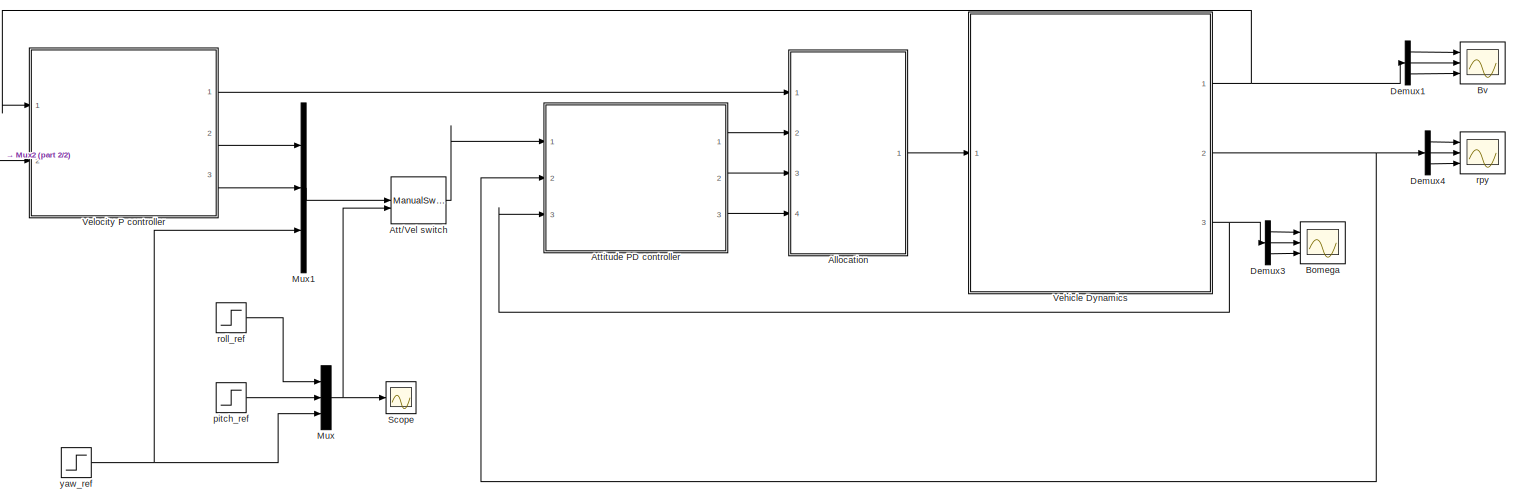
[diagram: root canvas - part 1/2, most of the canvas]
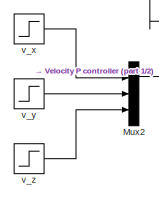
[diagram: root canvas - part 2/2, middle left region]
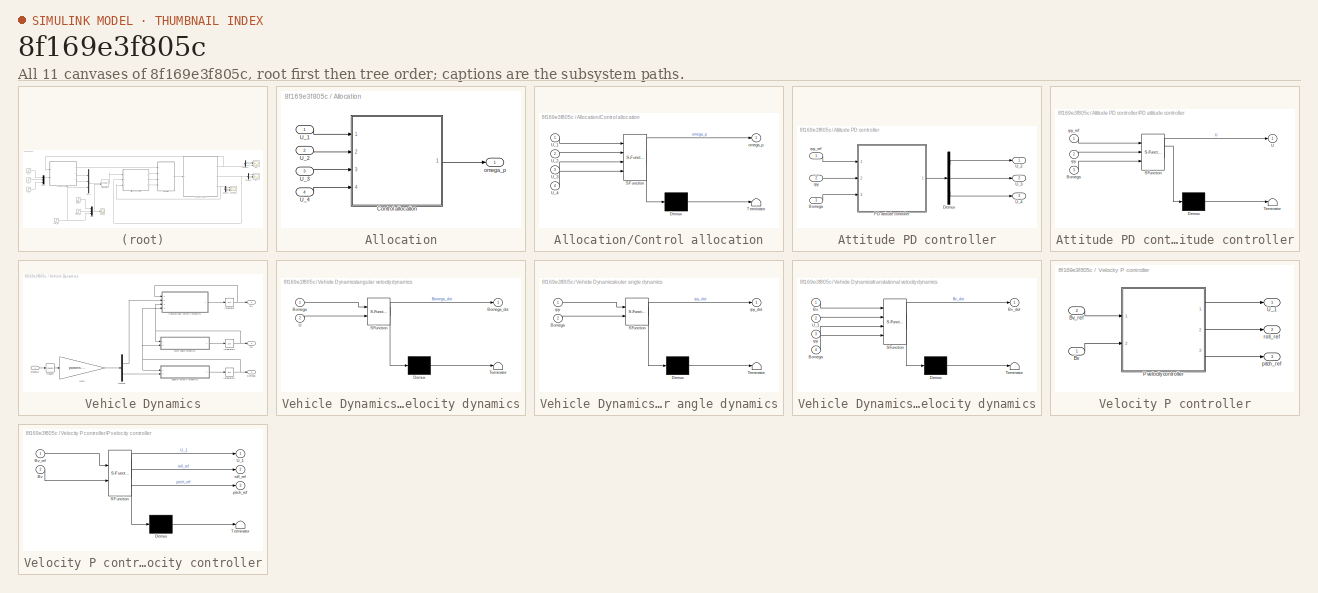
[diagram: thumbnail index - all 11 canvases of the model, root first then tree order]
MODEL slx_8f169e3f805c
KIND model
CONFIG AbsTol = auto
CONFIG EnableMultiTasking = on
CONFIG FixedStep = 0.01
CONFIG InitFcn = params = parameters();
CONFIG MaxStep = auto
CONFIG MinStep = auto
CONFIG RelTol = 1e-3
CONFIG SampleTimeConstraint = Unconstrained
CONFIG SolverName = VariableStepAuto
CONFIG StartTime = 0.0
CONFIG StopTime = 10.0
BLOCK [SubSystem] Allocation
  Ports = [4, 1]
  RequestExecContextInheritance = off
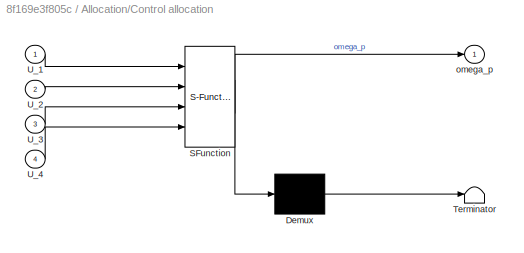
BLOCK [SubSystem] Allocation/Control allocation
  ErrorFcn = Stateflow.Translate.translate
  PermitHierarchicalResolution = ExplicitOnly
  Ports = [4, 1]
  RequestExecContextInheritance = off
  SFBlockType = MATLAB Function
  TreatAsAtomicUnit = on
BLOCK [Demux] Allocation/Control allocation/ Demux 
  Outputs = 1
  Ports = [1, 1]
BLOCK [S-Function] Allocation/Control allocation/ SFunction 
  EnableBusSupport = on
  FunctionName = sf_sfun
  PortCounts = [4 2]
  Ports = [4, 2]
  SFcnIsStateOwnerBlock = off
  SFunctionDeploymentMode = off
  Tag = Stateflow S-Function 7
BLOCK [Terminator] Allocation/Control allocation/ Terminator 
BLOCK [Inport] Allocation/Control allocation/U_1
BLOCK [Inport] Allocation/Control allocation/U_2
  Port = 2
BLOCK [Inport] Allocation/Control allocation/U_3
  Port = 3
BLOCK [Inport] Allocation/Control allocation/U_4
  Port = 4
BLOCK [Outport] Allocation/Control allocation/omega_p
BLOCK [Inport] Allocation/U_1
BLOCK [Inport] Allocation/U_2
  Port = 2
BLOCK [Inport] Allocation/U_3
  Port = 3
BLOCK [Inport] Allocation/U_4
  Port = 4
BLOCK [Outport] Allocation/omega_p
  PortDimensions = [6,1]
  VarSizeSig = No
BLOCK [ManualSwitch] Att//Vel switch
BLOCK [SubSystem] Attitude PD controller
  Ports = [3, 3]
  RequestExecContextInheritance = off
BLOCK [Inport] Attitude PD controller/Bomega 
  Port = 3
BLOCK [Demux] Attitude PD controller/Demux
  Outputs = 3
  Ports = [1, 3]
BLOCK [SubSystem] Attitude PD controller/PD attitude controller
  ErrorFcn = Stateflow.Translate.translate
  PermitHierarchicalResolution = ExplicitOnly
  Ports = [3, 1]
  RequestExecContextInheritance = off
  SFBlockType = MATLAB Function
  TreatAsAtomicUnit = on
BLOCK [Demux] Attitude PD controller/PD attitude controller/ Demux 
  Outputs = 1
  Ports = [1, 1]
BLOCK [S-Function] Attitude PD controller/PD attitude controller/ SFunction 
  EnableBusSupport = on
  FunctionName = sf_sfun
  PortCounts = [3 2]
  Ports = [3, 2]
  SFcnIsStateOwnerBlock = off
  SFunctionDeploymentMode = off
  Tag = Stateflow S-Function 5
BLOCK [Terminator] Attitude PD controller/PD attitude controller/ Terminator 
BLOCK [Inport] Attitude PD controller/PD attitude controller/Bomega
  Port = 3
BLOCK [Outport] Attitude PD controller/PD attitude controller/U
BLOCK [Inport] Attitude PD controller/PD attitude controller/rpy
  Port = 2
BLOCK [Inport] Attitude PD controller/PD attitude controller/rpy_ref
BLOCK [Outport] Attitude PD controller/U_2
BLOCK [Outport] Attitude PD controller/U_3
  Port = 2
BLOCK [Outport] Attitude PD controller/U_4
  Port = 3
BLOCK [Inport] Attitude PD controller/rpy
  Port = 2
BLOCK [Inport] Attitude PD controller/rpy_ref
BLOCK [Scope] Bomega
  Floating = off
  NumInputPorts = 3
  Ports = [3]
  ScopeSpecificationString = Simulink.scopes.TimeScopeBlockCfg('CurrentConfiguration', extmgr.ConfigurationSet(extmgr.Configuration('Core','General UI',true),extmgr.Configuration('Core','Source UI',true),extmgr.Configuration('Sources','WiredSimulink',true,'DataLoggingVariableName','ScopeData4','DataLoggingSaveFormat','StructureWithTime','DataLoggingMaxPoints','10000','DataLoggingLimitDataPoints',true,'DataLoggingDecimation','...<+3061ch>
BLOCK [Scope] Bv
  Floating = off
  NumInputPorts = 3
  Ports = [3]
  ScopeSpecificationString = Simulink.scopes.TimeScopeBlockCfg('CurrentConfiguration', extmgr.ConfigurationSet(extmgr.Configuration('Core','General UI',true),extmgr.Configuration('Core','Source UI',true),extmgr.Configuration('Sources','WiredSimulink',true,'DataLoggingVariableName','ScopeData1','DataLoggingSaveFormat','StructureWithTime','DataLoggingMaxPoints','10000','DataLoggingLimitDataPoints',true,'DataLoggingDecimation','...<+3097ch>
BLOCK [Demux] Demux1
  Outputs = 3
  Ports = [1, 3]
BLOCK [Demux] Demux3
  Outputs = 3
  Ports = [1, 3]
BLOCK [Demux] Demux4
  Outputs = 3
  Ports = [1, 3]
BLOCK [Mux] Mux
  DisplayOption = bar
  Inputs = 3
  Ports = [3, 1]
BLOCK [Mux] Mux1
  DisplayOption = bar
  Inputs = 3
  Ports = [3, 1]
BLOCK [Mux] Mux2
  DisplayOption = bar
  Inputs = 3
  Ports = [3, 1]
BLOCK [Scope] Scope
  Floating = off
  NumInputPorts = 1
  Ports = [1]
  ScopeSpecificationString = Simulink.scopes.TimeScopeBlockCfg('CurrentConfiguration', extmgr.ConfigurationSet(extmgr.Configuration('Core','General UI',true),extmgr.Configuration('Core','Source UI',true),extmgr.Configuration('Sources','WiredSimulink',true,'DataLoggingVariableName','ScopeData1'),extmgr.Configuration('Visuals','Time Domain',true,'SerializedDisplays',{struct('MinYLimReal','-0.03125','MaxYLimReal','0.28125','YLab...<+1467ch>
BLOCK [SubSystem] Vehicle Dynamics
  Ports = [1, 3]
  RequestExecContextInheritance = off
BLOCK [Outport] Vehicle Dynamics/Bomega
  Port = 3
BLOCK [Outport] Vehicle Dynamics/Bv
BLOCK [Demux] Vehicle Dynamics/Demux
  Outputs = [1 3]
  Ports = [1, 2]
BLOCK [Gain] Vehicle Dynamics/Gain
  Gain = params.allocation_matrix
  Multiplication = Matrix(K*u)
BLOCK [Integrator] Vehicle Dynamics/Integrator
  InitialCondition = params.Bv_0
  Ports = [1, 1]
BLOCK [Integrator] Vehicle Dynamics/Integrator1
  InitialCondition = params.rpy_0
  Ports = [1, 1]
BLOCK [Integrator] Vehicle Dynamics/Integrator2
  InitialCondition = [0;0;0]
  Ports = [1, 1]
BLOCK [Math] Vehicle Dynamics/Square
  Operator = square
  Ports = [1, 1]
BLOCK [SubSystem] Vehicle Dynamics/angular velocity dynamics
  ErrorFcn = Stateflow.Translate.translate
  PermitHierarchicalResolution = ExplicitOnly
  Ports = [2, 1]
  RequestExecContextInheritance = off
  SFBlockType = MATLAB Function
  TreatAsAtomicUnit = on
BLOCK [Demux] Vehicle Dynamics/angular velocity dynamics/ Demux 
  Outputs = 1
  Ports = [1, 1]
BLOCK [S-Function] Vehicle Dynamics/angular velocity dynamics/ SFunction 
  EnableBusSupport = on
  FunctionName = sf_sfun
  PortCounts = [2 2]
  Ports = [2, 2]
  SFcnIsStateOwnerBlock = off
  SFunctionDeploymentMode = off
  Tag = Stateflow S-Function 2
BLOCK [Terminator] Vehicle Dynamics/angular velocity dynamics/ Terminator 
BLOCK [Inport] Vehicle Dynamics/angular velocity dynamics/Bomega
BLOCK [Outport] Vehicle Dynamics/angular velocity dynamics/Bomega_dot
BLOCK [Inport] Vehicle Dynamics/angular velocity dynamics/U
  Port = 2
BLOCK [SubSystem] Vehicle Dynamics/euler angle dynamics
  ErrorFcn = Stateflow.Translate.translate
  PermitHierarchicalResolution = ExplicitOnly
  Ports = [2, 1]
  RequestExecContextInheritance = off
  SFBlockType = MATLAB Function
  TreatAsAtomicUnit = on
BLOCK [Demux] Vehicle Dynamics/euler angle dynamics/ Demux 
  Outputs = 1
  Ports = [1, 1]
BLOCK [S-Function] Vehicle Dynamics/euler angle dynamics/ SFunction 
  EnableBusSupport = on
  FunctionName = sf_sfun
  PortCounts = [2 2]
  Ports = [2, 2]
  SFcnIsStateOwnerBlock = off
  SFunctionDeploymentMode = off
  Tag = Stateflow S-Function 1
BLOCK [Terminator] Vehicle Dynamics/euler angle dynamics/ Terminator 
BLOCK [Inport] Vehicle Dynamics/euler angle dynamics/Bomega
  Port = 2
BLOCK [Inport] Vehicle Dynamics/euler angle dynamics/rpy
BLOCK [Outport] Vehicle Dynamics/euler angle dynamics/rpy_dot
BLOCK [Inport] Vehicle Dynamics/omega_p
BLOCK [Outport] Vehicle Dynamics/rpy
  Port = 2
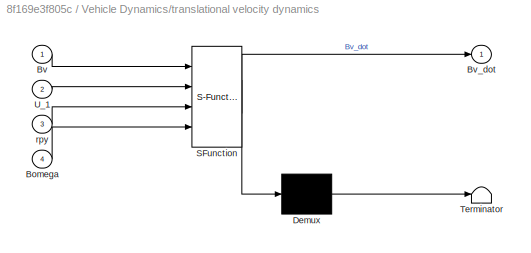
BLOCK [SubSystem] Vehicle Dynamics/translational velocity dynamics
  ErrorFcn = Stateflow.Translate.translate
  PermitHierarchicalResolution = ExplicitOnly
  Ports = [4, 1]
  RequestExecContextInheritance = off
  SFBlockType = MATLAB Function
  TreatAsAtomicUnit = on
BLOCK [Demux] Vehicle Dynamics/translational velocity dynamics/ Demux 
  Outputs = 1
  Ports = [1, 1]
BLOCK [S-Function] Vehicle Dynamics/translational velocity dynamics/ SFunction 
  EnableBusSupport = on
  FunctionName = sf_sfun
  PortCounts = [4 2]
  Ports = [4, 2]
  SFcnIsStateOwnerBlock = off
  SFunctionDeploymentMode = off
  Tag = Stateflow S-Function 3
BLOCK [Terminator] Vehicle Dynamics/translational velocity dynamics/ Terminator 
BLOCK [Inport] Vehicle Dynamics/translational velocity dynamics/Bomega
  Port = 4
BLOCK [Inport] Vehicle Dynamics/translational velocity dynamics/Bv
BLOCK [Outport] Vehicle Dynamics/translational velocity dynamics/Bv_dot
BLOCK [Inport] Vehicle Dynamics/translational velocity dynamics/U_1
  Port = 2
BLOCK [Inport] Vehicle Dynamics/translational velocity dynamics/rpy
  Port = 3
BLOCK [SubSystem] Velocity P controller
  Ports = [2, 3]
  RequestExecContextInheritance = off
BLOCK [Inport] Velocity P controller/Bv
BLOCK [Inport] Velocity P controller/Bv_ref
  Port = 2
BLOCK [SubSystem] Velocity P controller/P velocity controller
  ErrorFcn = Stateflow.Translate.translate
  PermitHierarchicalResolution = ExplicitOnly
  Ports = [2, 3]
  RequestExecContextInheritance = off
  SFBlockType = MATLAB Function
  TreatAsAtomicUnit = on
BLOCK [Demux] Velocity P controller/P velocity controller/ Demux 
  Outputs = 1
  Ports = [1, 1]
BLOCK [S-Function] Velocity P controller/P velocity controller/ SFunction 
  EnableBusSupport = on
  FunctionName = sf_sfun
  PortCounts = [2 4]
  Ports = [2, 4]
  SFcnIsStateOwnerBlock = off
  SFunctionDeploymentMode = off
  Tag = Stateflow S-Function 6
BLOCK [Terminator] Velocity P controller/P velocity controller/ Terminator 
BLOCK [Inport] Velocity P controller/P velocity controller/Bv
  Port = 2
BLOCK [Inport] Velocity P controller/P velocity controller/Bv_ref
BLOCK [Outport] Velocity P controller/P velocity controller/U_1
BLOCK [Outport] Velocity P controller/P velocity controller/pitch_ref
  Port = 3
BLOCK [Outport] Velocity P controller/P velocity controller/roll_ref
  Port = 2
BLOCK [Outport] Velocity P controller/U_1
BLOCK [Outport] Velocity P controller/pitch_ref
  Port = 3
BLOCK [Outport] Velocity P controller/roll_ref
  Port = 2
BLOCK [Step] pitch_ref
  After = 0.25
  SampleTime = 0
  Time = 3
BLOCK [Step] roll_ref
  After = 0.24
  SampleTime = 0
BLOCK [Scope] rpy
  Floating = off
  NumInputPorts = 3
  Ports = [3]
  ScopeSpecificationString = Simulink.scopes.TimeScopeBlockCfg('CurrentConfiguration', extmgr.ConfigurationSet(extmgr.Configuration('Core','General UI',true),extmgr.Configuration('Core','Source UI',true),extmgr.Configuration('Sources','WiredSimulink',true,'DataLoggingVariableName','ScopeData3','DataLoggingSaveFormat','StructureWithTime','DataLoggingMaxPoints','10000','DataLoggingLimitDataPoints',true,'DataLoggingDecimation','...<+3082ch>
BLOCK [Step] v_x
  After = 0.25
  SampleTime = 0
BLOCK [Step] v_y
  After = 0.25
  SampleTime = 0
  Time = 3
BLOCK [Step] v_z
  After = 0.25
  SampleTime = 0
  Time = 5
BLOCK [Step] yaw_ref
  After = 0
  SampleTime = 0
  Time = 5
LINE Allocation/Control allocation:1 -> Allocation/omega_p:1
LINE Allocation/U_1:1 -> Allocation/Control allocation:1
LINE Allocation/U_2:1 -> Allocation/Control allocation:2
LINE Allocation/U_3:1 -> Allocation/Control allocation:3
LINE Allocation/U_4:1 -> Allocation/Control allocation:4
LINE Allocation:1 -> Vehicle Dynamics:1
LINE Att//Vel switch:1 -> Attitude PD controller:1
LINE Attitude PD controller/Bomega :1 -> Attitude PD controller/PD attitude controller:3
LINE Attitude PD controller/Demux:1 -> Attitude PD controller/U_2:1
LINE Attitude PD controller/Demux:2 -> Attitude PD controller/U_3:1
LINE Attitude PD controller/Demux:3 -> Attitude PD controller/U_4:1
LINE Attitude PD controller/PD attitude controller:1 -> Attitude PD controller/Demux:1
LINE Attitude PD controller/rpy:1 -> Attitude PD controller/PD attitude controller:2
LINE Attitude PD controller/rpy_ref:1 -> Attitude PD controller/PD attitude controller:1
LINE Attitude PD controller:1 -> Allocation:2
LINE Attitude PD controller:2 -> Allocation:3
LINE Attitude PD controller:3 -> Allocation:4
LINE Demux1:1 -> Bv:1
LINE Demux1:2 -> Bv:2
LINE Demux1:3 -> Bv:3
LINE Demux3:1 -> Bomega:1
LINE Demux3:2 -> Bomega:2
LINE Demux3:3 -> Bomega:3
LINE Demux4:1 -> rpy:1
LINE Demux4:2 -> rpy:2
LINE Demux4:3 -> rpy:3
LINE Mux1:1 -> Att//Vel switch:1
LINE Mux2:1 -> Velocity P controller:2
NET Mux:1 -> Att//Vel switch:2, Scope:1
LINE Vehicle Dynamics/Demux:1 -> Vehicle Dynamics/translational velocity dynamics:2
LINE Vehicle Dynamics/Demux:2 -> Vehicle Dynamics/angular velocity dynamics:2
LINE Vehicle Dynamics/Gain:1 -> Vehicle Dynamics/Demux:1
NET Vehicle Dynamics/Integrator1:1 -> Vehicle Dynamics/euler angle dynamics:1, Vehicle Dynamics/rpy:1, Vehicle Dynamics/translational velocity dynamics:3
NET Vehicle Dynamics/Integrator2:1 -> Vehicle Dynamics/Bomega:1, Vehicle Dynamics/angular velocity dynamics:1, Vehicle Dynamics/euler angle dynamics:2, Vehicle Dynamics/translational velocity dynamics:4
NET Vehicle Dynamics/Integrator:1 -> Vehicle Dynamics/Bv:1, Vehicle Dynamics/translational velocity dynamics:1
LINE Vehicle Dynamics/Square:1 -> Vehicle Dynamics/Gain:1
LINE Vehicle Dynamics/angular velocity dynamics:1 -> Vehicle Dynamics/Integrator2:1
LINE Vehicle Dynamics/euler angle dynamics:1 -> Vehicle Dynamics/Integrator1:1
LINE Vehicle Dynamics/omega_p:1 -> Vehicle Dynamics/Square:1
LINE Vehicle Dynamics/translational velocity dynamics:1 -> Vehicle Dynamics/Integrator:1
NET Vehicle Dynamics:1 -> Demux1:1, Velocity P controller:1
NET Vehicle Dynamics:2 -> Attitude PD controller:2, Demux4:1
NET Vehicle Dynamics:3 -> Attitude PD controller:3, Demux3:1
LINE Velocity P controller/Bv:1 -> Velocity P controller/P velocity controller:2
LINE Velocity P controller/Bv_ref:1 -> Velocity P controller/P velocity controller:1
LINE Velocity P controller/P velocity controller:1 -> Velocity P controller/U_1:1
LINE Velocity P controller/P velocity controller:2 -> Velocity P controller/roll_ref:1
LINE Velocity P controller/P velocity controller:3 -> Velocity P controller/pitch_ref:1
LINE Velocity P controller:1 -> Allocation:1
LINE Velocity P controller:2 -> Mux1:1
LINE Velocity P controller:3 -> Mux1:2
LINE pitch_ref:1 -> Mux:2
LINE roll_ref:1 -> Mux:1
LINE v_x:1 -> Mux2:1
LINE v_y:1 -> Mux2:2
LINE v_z:1 -> Mux2:3
NET yaw_ref:1 -> Mux1:3, Mux:3
note: NET lines group one-source signal fan-out (src -> all destinations, sorted); 1:1 wires keep LINE
CHART Vehicle Dynamics/euler angle dynamics states=1 transitions=1
  STATE_LABEL 'eML_blk_kernel()'
  STATE_LABEL 'SCRIPT:\nfunction rpy_dot = rpy_dyn(rpy, Bomega)\nparams = parameters();\n% input\n% rpy: current attitude rpy = [roll; pitch; yaw]\n% Bomega: current angular velocity expressed in body frame\n\n% output\n% rpy_dot: roll, pitch and yaw time derivative\n\n% TODO: compute the roll, pitch and yaw time derivative\nrpy_dot = [0; 0; 0];\n\nrpy_dot = Bomega;\n\nend\n'
CHART Vehicle Dynamics/angular velocity dynamics states=1 transitions=1
  STATE_LABEL 'eML_blk_kernel()'
  STATE_LABEL 'SCRIPT:\nfunction Bomega_dot = Bomega_dyn(Bomega, U)\nparams = parameters();\n% input\n% Bomega: current angular velocity expressed in body frame\n% U: body torque U = [U_2; U_3; U_4]\n\n% output\n% Bomega_dot: angular velocity time derivative expressed in body frame\n\n% TODO: compute the angular velocity time derivative\nBomega_dot = [0; 0; 0];\n\nBomega_dot = inv(params.J) * U;\nend\n'
CHART Vehicle Dynamics/translational velocity dynamics states=1 transitions=1
  STATE_LABEL 'eML_blk_kernel()'
  STATE_LABEL 'SCRIPT:\nfunction Bv_dot = Bv_dyn(Bv, U_1, rpy, Bomega)\nparams = parameters();\n% input\n% Bv: current translational velocity expressed in body frame\n% U_1: thrust force\n% rpy: current attitude rpy = [roll; pitch; yaw]\n% Bomega: current angular velocity expressed in body frame\n\n% output\n% Bv_dot: translational velocity time derivative expressed in body frame\n\n% TODO: compute the translational velocit...<+122ch>'
CHART Attitude PD controller/PD attitude controller states=1 transitions=1
  STATE_LABEL 'eML_blk_kernel()'
  STATE_LABEL 'SCRIPT:\nfunction U = PD_att_ctrl(rpy_ref, rpy, Bomega)\nparams = parameters();\n% input\n% rpy_ref: reference roll, pitch and yaw angles\n% rpy: current roll, pitch and yaw angles;\n% Bomega: current angular velocity expressed in body frame\n\n% output\n% U: control torques U = [U_2; U_3; U_4]\n\n% TODO: compute the control torques required to track the desired attitude\nU = zeros(3,1);\n\nKp = diag(params.att...<+83ch>'
CHART Velocity P controller/P velocity controller states=1 transitions=1
  STATE_LABEL 'eML_blk_kernel()'
  STATE_LABEL 'SCRIPT:\nfunction [U_1, roll_ref, pitch_ref] = P_vel_ctrl(Bv_ref, Bv)\nparams = parameters();\n\n% input:\n% Bv_ref: velocity reference expressed in body frame\n% Bv: current velocity expressed in body frame\n\n% output:\n% U_1: thrust force\n% roll_ref: desired roll angle\n% pitch_ref: desired pitch angle \n\n% TODO: compute the thrust force, roll and pitch angle required to track\n% the desired velocity\nU_1 =...<+198ch>'
CHART Allocation/Control allocation states=1 transitions=1
  STATE_LABEL 'eML_blk_kernel()'
  STATE_LABEL 'SCRIPT:\nfunction omega_p = alloc(U_1, U_2, U_3, U_4)\nparams = parameters();\nomega_p_sqr = params.pinv_allocation_matrix*[U_1; U_2; U_3; U_4];\n\n%make sure only positive values are allowed.\nomega_p_sqr = max(omega_p_sqr, zeros(6,1));\n\n%actual rotors velocities\nomega_p = sqrt(omega_p_sqr);'
CHART  states=0 transitions=0
CHART  states=0 transitions=0
CHART  states=0 transitions=0
CHART  states=0 transitions=0
CHART  states=0 transitions=0
CHART  states=0 transitions=0
